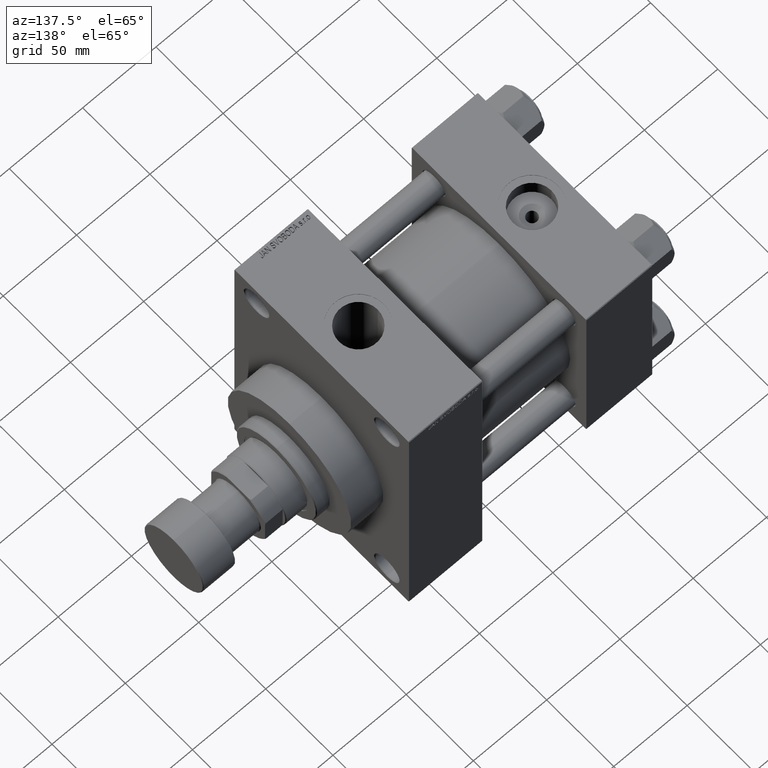
[diagram: clean part render]
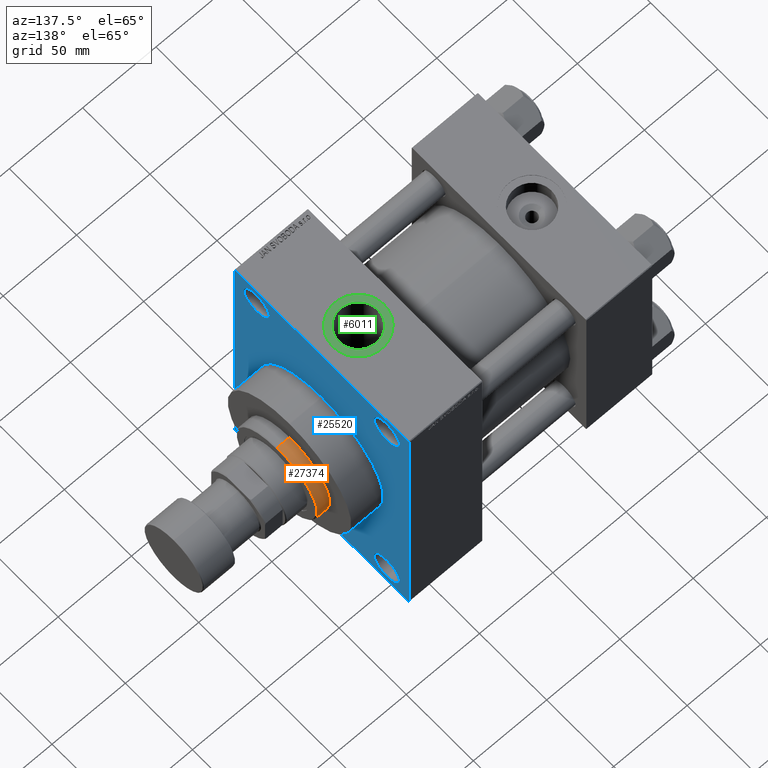
[diagram: same view with three faces highlighted in distinct colors, each labeled with its STEP entity id]
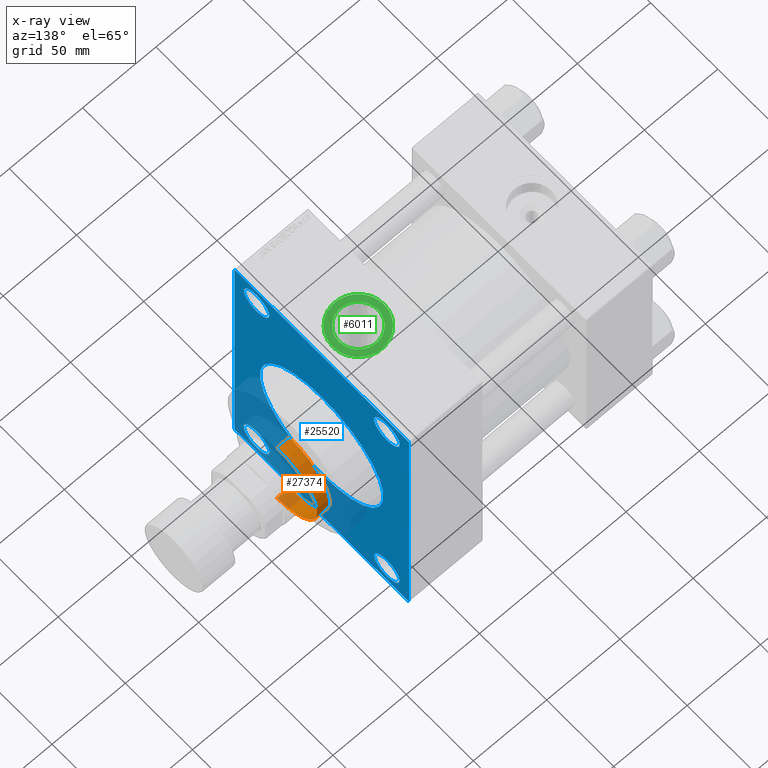
[diagram: x-ray of the same camera — body ghosted, the three highlighted faces saturated]
A machine part, auxiliary view with three faces highlighted in distinct colors.
The next image is the same camera in x-ray (body ghosted, the three faces saturated) — at least one of them is partly hidden behind the body in this view.
Their STEP definitions:

[orange] entity #27374 — the highlighted cylindrical surface (partial cylindrical patch) has radius 30 mm, axis along (-1, -0, 0).
#899 = LINE ( 'NONE', #12081, #9043 ) ;
#2706 = CARTESIAN_POINT ( 'NONE',  ( 0.000000000000000000, 0.000000000000000000, 43.25999999999999801 ) ) ;
#2953 = CARTESIAN_POINT ( 'NONE',  ( 0.000000000000000000, 0.000000000000000000, 52.25999999999999801 ) ) ;
#6353 = EDGE_CURVE ( 'NONE', #18517, #17009, #46920, .T. ) ;
#6823 = DIRECTION ( 'NONE',  ( 0.000000000000000000, 0.000000000000000000, -1.000000000000000000 ) ) ;
#7302 = DIRECTION ( 'NONE',  ( 1.000000000000000000, 0.000000000000000000, 0.000000000000000000 ) ) ;
#7532 = CARTESIAN_POINT ( 'NONE',  ( 30.00000000000000000, 3.673940397442059178E-15, 51.75999999999999091 ) ) ;
#9043 = VECTOR ( 'NONE', #22792, 1000.000000000000000 ) ;
#9234 = CARTESIAN_POINT ( 'NONE',  ( -30.00000000000000000, 0.000000000000000000, 52.25999999999999801 ) ) ;
#9527 = DIRECTION ( 'NONE',  ( 0.000000000000000000, 0.000000000000000000, 1.000000000000000000 ) ) ;
#9748 = ORIENTED_EDGE ( 'NONE', *, *, #13445, .T. ) ;
#10249 = DIRECTION ( 'NONE',  ( -1.000000000000000000, 0.000000000000000000, 0.000000000000000000 ) ) ;
#12081 = CARTESIAN_POINT ( 'NONE',  ( 30.00000000000000000, 3.673940397442059178E-15, 52.25999999999999801 ) ) ;
#12578 = ORIENTED_EDGE ( 'NONE', *, *, #26535, .T. ) ;
#13445 = EDGE_CURVE ( 'NONE', #18517, #42559, #37090, .T. ) ;
#15708 = AXIS2_PLACEMENT_3D ( 'NONE', #2706, #9527, #23885 ) ;
#17009 = VERTEX_POINT ( 'NONE', #24596 ) ;
#18517 = VERTEX_POINT ( 'NONE', #25490 ) ;
#21135 = DIRECTION ( 'NONE',  ( -0.000000000000000000, -0.000000000000000000, -1.000000000000000000 ) ) ;
#22792 = DIRECTION ( 'NONE',  ( -0.000000000000000000, -0.000000000000000000, -1.000000000000000000 ) ) ;
#23885 = DIRECTION ( 'NONE',  ( 1.000000000000000000, 0.000000000000000000, 0.000000000000000000 ) ) ;
#24126 = DIRECTION ( 'NONE',  ( -0.000000000000000000, -0.000000000000000000, -1.000000000000000000 ) ) ;
#24596 = CARTESIAN_POINT ( 'NONE',  ( -30.00000000000000000, 0.000000000000000000, 43.25999999999999801 ) ) ;
#25490 = CARTESIAN_POINT ( 'NONE',  ( -30.00000000000000000, 0.000000000000000000, 51.75999999999999091 ) ) ;
#26535 = EDGE_CURVE ( 'NONE', #40437, #17009, #43642, .T. ) ;
#27374 = ADVANCED_FACE ( 'NONE', ( #42837 ), #47223, .T. ) ;
#32317 = EDGE_LOOP ( 'NONE', ( #9748, #36112, #12578, #40775 ) ) ;
#32568 = CARTESIAN_POINT ( 'NONE',  ( 0.000000000000000000, 0.000000000000000000, 51.75999999999999091 ) ) ;
#33134 = VECTOR ( 'NONE', #21135, 1000.000000000000000 ) ;
#33196 = AXIS2_PLACEMENT_3D ( 'NONE', #32568, #6823, #7302 ) ;
#36112 = ORIENTED_EDGE ( 'NONE', *, *, #47587, .T. ) ;
#37090 = CIRCLE ( 'NONE', #33196, 30.00000000000000000 ) ;
#38254 = AXIS2_PLACEMENT_3D ( 'NONE', #2953, #24126, #10249 ) ;
#40437 = VERTEX_POINT ( 'NONE', #42351 ) ;
#40775 = ORIENTED_EDGE ( 'NONE', *, *, #6353, .F. ) ;
#42351 = CARTESIAN_POINT ( 'NONE',  ( 30.00000000000000000, 3.673940397442059178E-15, 43.25999999999999801 ) ) ;
#42559 = VERTEX_POINT ( 'NONE', #7532 ) ;
#42837 = FACE_OUTER_BOUND ( 'NONE', #32317, .T. ) ;
#43642 = CIRCLE ( 'NONE', #15708, 30.00000000000000000 ) ;
#46920 = LINE ( 'NONE', #9234, #33134 ) ;
#47223 = CYLINDRICAL_SURFACE ( 'NONE', #38254, 30.00000000000000000 ) ;
#47587 = EDGE_CURVE ( 'NONE', #42559, #40437, #899, .T. ) ;

[blue] entity #25520 — the highlighted planar face has unit normal (-1, 0, 0).
#85 = EDGE_CURVE ( 'NONE', #31573, #27287, #22503, .T. ) ;
#941 = CARTESIAN_POINT ( 'NONE',  ( 165.9999999999999716, 65.00000000000000000, 94.50000000000000000 ) ) ;
#1240 = CARTESIAN_POINT ( 'NONE',  ( 165.9999999999999716, 48.50000000000000000, 90.49999999999992895 ) ) ;
#2083 = VECTOR ( 'NONE', #33769, 999.9999999999998863 ) ;
#2445 = EDGE_LOOP ( 'NONE', ( #3041, #5012 ) ) ;
#2491 = DIRECTION ( 'NONE',  ( 0.000000000000000000, 0.000000000000000000, 1.000000000000000000 ) ) ;
#2665 = DIRECTION ( 'NONE',  ( -1.000000000000000000, -0.000000000000000000, -0.000000000000000000 ) ) ;
#2689 = AXIS2_PLACEMENT_3D ( 'NONE', #19522, #34330, #3964 ) ;
#3041 = ORIENTED_EDGE ( 'NONE', *, *, #24106, .T. ) ;
#3172 = CARTESIAN_POINT ( 'NONE',  ( 165.9999999999999716, 48.50000000000000000, 71.50000000000007105 ) ) ;
#3299 = CARTESIAN_POINT ( 'NONE',  ( 165.9999999999999716, -65.00000000000000000, -94.50000000000001421 ) ) ;
#3360 = DIRECTION ( 'NONE',  ( 1.000000000000000000, 0.000000000000000000, 0.000000000000000000 ) ) ;
#3470 = DIRECTION ( 'NONE',  ( -1.000000000000000000, -0.000000000000000000, -0.000000000000000000 ) ) ;
#3964 = DIRECTION ( 'NONE',  ( 0.000000000000000000, 0.000000000000000000, 1.000000000000000000 ) ) ;
#4360 = CARTESIAN_POINT ( 'NONE',  ( 165.9999999999999716, 0.000000000000000000, 0.000000000000000000 ) ) ;
#4439 = ORIENTED_EDGE ( 'NONE', *, *, #13235, .T. ) ;
#4493 = DIRECTION ( 'NONE',  ( -1.000000000000000000, -0.000000000000000000, -0.000000000000000000 ) ) ;
#4591 = FACE_BOUND ( 'NONE', #33556, .T. ) ;
#4727 = CARTESIAN_POINT ( 'NONE',  ( 165.9999999999999716, 48.50000000000000000, -81.00000000000000000 ) ) ;
#4845 = ORIENTED_EDGE ( 'NONE', *, *, #40842, .T. ) ;
#4850 = VECTOR ( 'NONE', #41146, 1000.000000000000000 ) ;
#5012 = ORIENTED_EDGE ( 'NONE', *, *, #34785, .T. ) ;
#5071 = CARTESIAN_POINT ( 'NONE',  ( 165.9999999999999716, 65.00000000000000000, -94.50000000000002842 ) ) ;
#5150 = VECTOR ( 'NONE', #28759, 1000.000000000000114 ) ;
#5277 = CIRCLE ( 'NONE', #9932, 9.499999999999925393 ) ;
#5362 = VERTEX_POINT ( 'NONE', #47735 ) ;
#5580 = AXIS2_PLACEMENT_3D ( 'NONE', #4360, #18958, #37177 ) ;
#5643 = EDGE_CURVE ( 'NONE', #21204, #43215, #19213, .T. ) ;
#6312 = EDGE_CURVE ( 'NONE', #42655, #26913, #8995, .T. ) ;
#7237 = CARTESIAN_POINT ( 'NONE',  ( 165.9999999999999716, -48.50000000000000000, -90.50000000000001421 ) ) ;
#7262 = DIRECTION ( 'NONE',  ( 0.000000000000000000, 0.000000000000000000, -1.000000000000000000 ) ) ;
#7855 = AXIS2_PLACEMENT_3D ( 'NONE', #20972, #35784, #2491 ) ;
#7910 = CARTESIAN_POINT ( 'NONE',  ( 165.9999999999999716, -65.00000000000000000, 94.49999999999998579 ) ) ;
#8278 = CARTESIAN_POINT ( 'NONE',  ( 165.9999999999999716, 65.00000000000000000, 95.00000000000000000 ) ) ;
#8437 = DIRECTION ( 'NONE',  ( -1.000000000000000000, -0.000000000000000000, -0.000000000000000000 ) ) ;
#8995 = LINE ( 'NONE', #8278, #36991 ) ;
#9671 = AXIS2_PLACEMENT_3D ( 'NONE', #22215, #39967, #29736 ) ;
#9932 = AXIS2_PLACEMENT_3D ( 'NONE', #33346, #40400, #14885 ) ;
#10049 = LINE ( 'NONE', #13943, #5150 ) ;
#10331 = EDGE_CURVE ( 'NONE', #18039, #41136, #41062, .T. ) ;
#10776 = LINE ( 'NONE', #29960, #13592 ) ;
#11092 = CARTESIAN_POINT ( 'NONE',  ( 165.9999999999999716, -65.00000000000000000, 94.49999999999998579 ) ) ;
#11200 = CARTESIAN_POINT ( 'NONE',  ( 165.9999999999999716, 5.633375276077824704E-15, -46.00000000000000000 ) ) ;
#11670 = DIRECTION ( 'NONE',  ( 0.000000000000000000, 0.000000000000000000, -1.000000000000000000 ) ) ;
#11759 = ORIENTED_EDGE ( 'NONE', *, *, #23055, .T. ) ;
#11857 = ORIENTED_EDGE ( 'NONE', *, *, #15240, .T. ) ;
#12445 = VERTEX_POINT ( 'NONE', #35910 ) ;
#12551 = CARTESIAN_POINT ( 'NONE',  ( 165.9999999999999716, 48.50000000000000000, -90.50000000000001421 ) ) ;
#13235 = EDGE_CURVE ( 'NONE', #39007, #45979, #5277, .T. ) ;
#13535 = AXIS2_PLACEMENT_3D ( 'NONE', #32880, #3470, #41140 ) ;
#13562 = CIRCLE ( 'NONE', #2689, 9.500000000000008882 ) ;
#13592 = VECTOR ( 'NONE', #25595, 1000.000000000000114 ) ;
#13857 = CARTESIAN_POINT ( 'NONE',  ( 165.9999999999999716, -48.50000000000000000, 81.00000000000000000 ) ) ;
#13943 = CARTESIAN_POINT ( 'NONE',  ( 165.9999999999999716, 64.50000000000000000, 95.00000000000000000 ) ) ;
#14258 = VERTEX_POINT ( 'NONE', #7237 ) ;
#14266 = CARTESIAN_POINT ( 'NONE',  ( 165.9999999999999716, 65.00000000000000000, -95.00000000000002842 ) ) ;
#14885 = DIRECTION ( 'NONE',  ( 0.000000000000000000, 0.000000000000000000, 1.000000000000000000 ) ) ;
#15240 = EDGE_CURVE ( 'NONE', #43079, #5362, #34072, .T. ) ;
#15444 = AXIS2_PLACEMENT_3D ( 'NONE', #16456, #8437, #27137 ) ;
#15611 = AXIS2_PLACEMENT_3D ( 'NONE', #13857, #2665, #42543 ) ;
#15999 = VECTOR ( 'NONE', #11670, 1000.000000000000000 ) ;
#16456 = CARTESIAN_POINT ( 'NONE',  ( 165.9999999999999716, -48.50000000000000000, 81.00000000000000000 ) ) ;
#16514 = CARTESIAN_POINT ( 'NONE',  ( 165.9999999999999716, 65.00000000000000000, 95.00000000000000000 ) ) ;
#16721 = VECTOR ( 'NONE', #47830, 1000.000000000000000 ) ;
#16841 = CARTESIAN_POINT ( 'NONE',  ( 165.9999999999999716, -64.50000000000000000, -95.00000000000002842 ) ) ;
#17285 = AXIS2_PLACEMENT_3D ( 'NONE', #4727, #4493, #46064 ) ;
#17737 = CARTESIAN_POINT ( 'NONE',  ( 165.9999999999999716, -64.50000000000000000, 94.99999999999998579 ) ) ;
#18039 = VERTEX_POINT ( 'NONE', #3299 ) ;
#18958 = DIRECTION ( 'NONE',  ( -1.000000000000000000, 0.000000000000000000, -0.000000000000000000 ) ) ;
#19213 = LINE ( 'NONE', #16514, #15999 ) ;
#19231 = DIRECTION ( 'NONE',  ( 0.000000000000000000, -1.000000000000000000, -1.067522139062650425E-16 ) ) ;
#19490 = CARTESIAN_POINT ( 'NONE',  ( 165.9999999999999716, 0.000000000000000000, 0.000000000000000000 ) ) ;
#19522 = CARTESIAN_POINT ( 'NONE',  ( 165.9999999999999716, -48.50000000000000000, -81.00000000000000000 ) ) ;
#20137 = CARTESIAN_POINT ( 'NONE',  ( 165.9999999999999716, 64.50000000000000000, 95.00000000000000000 ) ) ;
#20972 = CARTESIAN_POINT ( 'NONE',  ( 165.9999999999999716, 48.50000000000000000, -81.00000000000000000 ) ) ;
#21204 = VERTEX_POINT ( 'NONE', #941 ) ;
#21696 = EDGE_CURVE ( 'NONE', #27287, #31573, #21749, .T. ) ;
#21749 = CIRCLE ( 'NONE', #39585, 46.00000000000000000 ) ;
#21786 = CIRCLE ( 'NONE', #15611, 9.499999999999925393 ) ;
#21836 = ORIENTED_EDGE ( 'NONE', *, *, #21696, .F. ) ;
#22215 = CARTESIAN_POINT ( 'NONE',  ( 165.9999999999999716, -48.50000000000000000, -81.00000000000000000 ) ) ;
#22503 = CIRCLE ( 'NONE', #44219, 46.00000000000000000 ) ;
#23055 = EDGE_CURVE ( 'NONE', #5362, #43079, #21786, .T. ) ;
#23077 = FACE_BOUND ( 'NONE', #2445, .T. ) ;
#24106 = EDGE_CURVE ( 'NONE', #37504, #12445, #28786, .T. ) ;
#24671 = VERTEX_POINT ( 'NONE', #40939 ) ;
#25209 = ORIENTED_EDGE ( 'NONE', *, *, #48127, .T. ) ;
#25282 = CARTESIAN_POINT ( 'NONE',  ( 165.9999999999999716, -48.50000000000000000, 71.50000000000007105 ) ) ;
#25351 = EDGE_LOOP ( 'NONE', ( #39828, #45523, #39490, #35973, #33013, #25209, #44862, #32124 ) ) ;
#25376 = ORIENTED_EDGE ( 'NONE', *, *, #31262, .T. ) ;
#25520 = ADVANCED_FACE ( 'NONE', ( #4591, #33281, #23077, #29886, #44972, #30597 ), #37422, .F. ) ;
#25595 = DIRECTION ( 'NONE',  ( -0.000000000000000000, 0.7071067811865474617, 0.7071067811865474617 ) ) ;
#26427 = EDGE_CURVE ( 'NONE', #43726, #18039, #47992, .T. ) ;
#26801 = CARTESIAN_POINT ( 'NONE',  ( 165.9999999999999716, 0.000000000000000000, 46.00000000000000000 ) ) ;
#26913 = VERTEX_POINT ( 'NONE', #17737 ) ;
#27137 = DIRECTION ( 'NONE',  ( 0.000000000000000000, 0.000000000000000000, 1.000000000000000000 ) ) ;
#27287 = VERTEX_POINT ( 'NONE', #26801 ) ;
#27992 = CARTESIAN_POINT ( 'NONE',  ( 165.9999999999999716, 64.50000000000000000, -95.00000000000002842 ) ) ;
#27998 = EDGE_CURVE ( 'NONE', #26913, #43726, #29315, .T. ) ;
#28165 = VECTOR ( 'NONE', #28602, 1000.000000000000114 ) ;
#28262 = CIRCLE ( 'NONE', #13535, 9.499999999999925393 ) ;
#28602 = DIRECTION ( 'NONE',  ( -0.000000000000000000, -0.7071067811865474617, -0.7071067811865474617 ) ) ;
#28759 = DIRECTION ( 'NONE',  ( 0.000000000000000000, -0.7071067811865474617, 0.7071067811865474617 ) ) ;
#28786 = CIRCLE ( 'NONE', #7855, 9.500000000000008882 ) ;
#29315 = LINE ( 'NONE', #11092, #28165 ) ;
#29736 = DIRECTION ( 'NONE',  ( 0.000000000000000000, 0.000000000000000000, 1.000000000000000000 ) ) ;
#29886 = FACE_BOUND ( 'NONE', #39816, .T. ) ;
#29960 = CARTESIAN_POINT ( 'NONE',  ( 165.9999999999999716, 65.00000000000000000, -94.50000000000002842 ) ) ;
#29964 = CARTESIAN_POINT ( 'NONE',  ( 165.9999999999999716, -65.00000000000000000, 94.99999999999998579 ) ) ;
#30597 = FACE_OUTER_BOUND ( 'NONE', #25351, .T. ) ;
#31262 = EDGE_CURVE ( 'NONE', #45979, #39007, #28262, .T. ) ;
#31339 = ORIENTED_EDGE ( 'NONE', *, *, #40231, .T. ) ;
#31573 = VERTEX_POINT ( 'NONE', #11200 ) ;
#32016 = LINE ( 'NONE', #14266, #16721 ) ;
#32124 = ORIENTED_EDGE ( 'NONE', *, *, #27998, .T. ) ;
#32880 = CARTESIAN_POINT ( 'NONE',  ( 165.9999999999999716, 48.50000000000000000, 81.00000000000000000 ) ) ;
#33013 = ORIENTED_EDGE ( 'NONE', *, *, #5643, .F. ) ;
#33281 = FACE_BOUND ( 'NONE', #44497, .T. ) ;
#33346 = CARTESIAN_POINT ( 'NONE',  ( 165.9999999999999716, 48.50000000000000000, 81.00000000000000000 ) ) ;
#33556 = EDGE_LOOP ( 'NONE', ( #11857, #11759 ) ) ;
#33769 = DIRECTION ( 'NONE',  ( 0.000000000000000000, 0.7071067811865376918, -0.7071067811865574537 ) ) ;
#34072 = CIRCLE ( 'NONE', #15444, 9.499999999999925393 ) ;
#34330 = DIRECTION ( 'NONE',  ( -1.000000000000000000, -0.000000000000000000, -0.000000000000000000 ) ) ;
#34474 = CARTESIAN_POINT ( 'NONE',  ( 165.9999999999999716, -64.50000000000000000, -95.00000000000002842 ) ) ;
#34785 = EDGE_CURVE ( 'NONE', #12445, #37504, #46793, .T. ) ;
#35109 = VERTEX_POINT ( 'NONE', #27992 ) ;
#35777 = EDGE_LOOP ( 'NONE', ( #21836, #45354 ) ) ;
#35784 = DIRECTION ( 'NONE',  ( -1.000000000000000000, -0.000000000000000000, -0.000000000000000000 ) ) ;
#35910 = CARTESIAN_POINT ( 'NONE',  ( 165.9999999999999716, 48.50000000000000000, -71.50000000000000000 ) ) ;
#35973 = ORIENTED_EDGE ( 'NONE', *, *, #44975, .T. ) ;
#36656 = CARTESIAN_POINT ( 'NONE',  ( 165.9999999999999716, 0.000000000000000000, 0.000000000000000000 ) ) ;
#36991 = VECTOR ( 'NONE', #19231, 1000.000000000000000 ) ;
#37177 = DIRECTION ( 'NONE',  ( -0.000000000000000000, 0.000000000000000000, 1.000000000000000000 ) ) ;
#37422 = PLANE ( 'NONE',  #5580 ) ;
#37504 = VERTEX_POINT ( 'NONE', #12551 ) ;
#37948 = DIRECTION ( 'NONE',  ( 1.000000000000000000, 0.000000000000000000, 0.000000000000000000 ) ) ;
#39007 = VERTEX_POINT ( 'NONE', #3172 ) ;
#39490 = ORIENTED_EDGE ( 'NONE', *, *, #41751, .F. ) ;
#39585 = AXIS2_PLACEMENT_3D ( 'NONE', #19490, #37948, #47967 ) ;
#39816 = EDGE_LOOP ( 'NONE', ( #4439, #25376 ) ) ;
#39828 = ORIENTED_EDGE ( 'NONE', *, *, #26427, .T. ) ;
#39967 = DIRECTION ( 'NONE',  ( -1.000000000000000000, -0.000000000000000000, -0.000000000000000000 ) ) ;
#40231 = EDGE_CURVE ( 'NONE', #24671, #14258, #13562, .T. ) ;
#40400 = DIRECTION ( 'NONE',  ( -1.000000000000000000, -0.000000000000000000, -0.000000000000000000 ) ) ;
#40842 = EDGE_CURVE ( 'NONE', #14258, #24671, #43813, .T. ) ;
#40939 = CARTESIAN_POINT ( 'NONE',  ( 165.9999999999999716, -48.50000000000000000, -71.50000000000000000 ) ) ;
#41062 = LINE ( 'NONE', #34474, #2083 ) ;
#41136 = VERTEX_POINT ( 'NONE', #16841 ) ;
#41140 = DIRECTION ( 'NONE',  ( 0.000000000000000000, 0.000000000000000000, 1.000000000000000000 ) ) ;
#41146 = DIRECTION ( 'NONE',  ( 0.000000000000000000, 0.000000000000000000, -1.000000000000000000 ) ) ;
#41751 = EDGE_CURVE ( 'NONE', #35109, #41136, #32016, .T. ) ;
#42543 = DIRECTION ( 'NONE',  ( 0.000000000000000000, 0.000000000000000000, 1.000000000000000000 ) ) ;
#42655 = VERTEX_POINT ( 'NONE', #20137 ) ;
#43079 = VERTEX_POINT ( 'NONE', #25282 ) ;
#43215 = VERTEX_POINT ( 'NONE', #5071 ) ;
#43726 = VERTEX_POINT ( 'NONE', #7910 ) ;
#43813 = CIRCLE ( 'NONE', #9671, 9.500000000000008882 ) ;
#44219 = AXIS2_PLACEMENT_3D ( 'NONE', #36656, #3360, #7262 ) ;
#44497 = EDGE_LOOP ( 'NONE', ( #4845, #31339 ) ) ;
#44862 = ORIENTED_EDGE ( 'NONE', *, *, #6312, .T. ) ;
#44972 = FACE_BOUND ( 'NONE', #35777, .T. ) ;
#44975 = EDGE_CURVE ( 'NONE', #35109, #43215, #10776, .T. ) ;
#45354 = ORIENTED_EDGE ( 'NONE', *, *, #85, .F. ) ;
#45523 = ORIENTED_EDGE ( 'NONE', *, *, #10331, .T. ) ;
#45979 = VERTEX_POINT ( 'NONE', #1240 ) ;
#46064 = DIRECTION ( 'NONE',  ( 0.000000000000000000, 0.000000000000000000, 1.000000000000000000 ) ) ;
#46793 = CIRCLE ( 'NONE', #17285, 9.500000000000008882 ) ;
#47735 = CARTESIAN_POINT ( 'NONE',  ( 165.9999999999999716, -48.50000000000000000, 90.49999999999992895 ) ) ;
#47830 = DIRECTION ( 'NONE',  ( 0.000000000000000000, -1.000000000000000000, 0.000000000000000000 ) ) ;
#47967 = DIRECTION ( 'NONE',  ( 0.000000000000000000, 0.000000000000000000, -1.000000000000000000 ) ) ;
#47992 = LINE ( 'NONE', #29964, #4850 ) ;
#48127 = EDGE_CURVE ( 'NONE', #21204, #42655, #10049, .T. ) ;

[green] entity #6011 — the highlighted planar face has unit normal (0, 0, 1).
#3347 = DIRECTION ( 'NONE',  ( 1.000000000000000000, 0.000000000000000000, 0.000000000000000000 ) ) ;
#5212 = CIRCLE ( 'NONE', #6676, 17.50000000000001421 ) ;
#5280 = EDGE_LOOP ( 'NONE', ( #45905, #45197 ) ) ;
#6011 = ADVANCED_FACE ( 'NONE', ( #8569, #46254 ), #16590, .T. ) ;
#6321 = CIRCLE ( 'NONE', #12525, 13.22000000000000952 ) ;
#6676 = AXIS2_PLACEMENT_3D ( 'NONE', #45667, #46150, #27653 ) ;
#7612 = CARTESIAN_POINT ( 'NONE',  ( 127.7799999999999443, -1.014146032109517921E-14, 94.79999999999999716 ) ) ;
#8036 = EDGE_CURVE ( 'NONE', #33803, #38825, #5212, .T. ) ;
#8569 = FACE_BOUND ( 'NONE', #5280, .T. ) ;
#9293 = DIRECTION ( 'NONE',  ( 0.000000000000000000, 0.000000000000000000, 1.000000000000000000 ) ) ;
#9889 = CARTESIAN_POINT ( 'NONE',  ( 123.4999999999999432, -7.998328422587307805E-15, 94.79999999999999716 ) ) ;
#10448 = DIRECTION ( 'NONE',  ( -0.000000000000000000, -0.000000000000000000, -1.000000000000000000 ) ) ;
#11563 = AXIS2_PLACEMENT_3D ( 'NONE', #43467, #36645, #3347 ) ;
#12525 = AXIS2_PLACEMENT_3D ( 'NONE', #21634, #10448, #24321 ) ;
#15101 = EDGE_CURVE ( 'NONE', #38825, #33803, #41828, .T. ) ;
#15921 = CARTESIAN_POINT ( 'NONE',  ( 154.2199999999999704, -8.522477252622377268E-15, 94.79999999999999716 ) ) ;
#16098 = EDGE_LOOP ( 'NONE', ( #36911, #23604 ) ) ;
#16590 = PLANE ( 'NONE',  #33099 ) ;
#18739 = DIRECTION ( 'NONE',  ( -0.000000000000000000, -0.000000000000000000, -1.000000000000000000 ) ) ;
#20845 = EDGE_CURVE ( 'NONE', #33973, #38738, #6321, .T. ) ;
#21634 = CARTESIAN_POINT ( 'NONE',  ( 140.9999999999999716, -1.014146032109517921E-14, 94.79999999999999716 ) ) ;
#23604 = ORIENTED_EDGE ( 'NONE', *, *, #8036, .T. ) ;
#24120 = DIRECTION ( 'NONE',  ( 1.000000000000000000, 0.000000000000000000, -0.000000000000000000 ) ) ;
#24321 = DIRECTION ( 'NONE',  ( 1.000000000000000000, 0.000000000000000000, 0.000000000000000000 ) ) ;
#27653 = DIRECTION ( 'NONE',  ( 1.000000000000000000, 0.000000000000000000, 0.000000000000000000 ) ) ;
#29710 = CARTESIAN_POINT ( 'NONE',  ( 158.4999999999999716, -1.014146032109517921E-14, 94.79999999999999716 ) ) ;
#31221 = CIRCLE ( 'NONE', #38223, 13.22000000000000952 ) ;
#33099 = AXIS2_PLACEMENT_3D ( 'NONE', #42592, #9293, #24120 ) ;
#33803 = VERTEX_POINT ( 'NONE', #9889 ) ;
#33973 = VERTEX_POINT ( 'NONE', #15921 ) ;
#35314 = EDGE_CURVE ( 'NONE', #38738, #33973, #31221, .T. ) ;
#36645 = DIRECTION ( 'NONE',  ( 0.000000000000000000, 0.000000000000000000, 1.000000000000000000 ) ) ;
#36911 = ORIENTED_EDGE ( 'NONE', *, *, #15101, .T. ) ;
#38223 = AXIS2_PLACEMENT_3D ( 'NONE', #42035, #18739, #45232 ) ;
#38738 = VERTEX_POINT ( 'NONE', #7612 ) ;
#38825 = VERTEX_POINT ( 'NONE', #29710 ) ;
#41828 = CIRCLE ( 'NONE', #11563, 17.50000000000001421 ) ;
#42035 = CARTESIAN_POINT ( 'NONE',  ( 140.9999999999999716, -1.014146032109517921E-14, 94.79999999999999716 ) ) ;
#42592 = CARTESIAN_POINT ( 'NONE',  ( 140.9999999999999716, -1.014146032109517921E-14, 94.79999999999999716 ) ) ;
#43467 = CARTESIAN_POINT ( 'NONE',  ( 140.9999999999999716, -1.014146032109517921E-14, 94.79999999999999716 ) ) ;
#45197 = ORIENTED_EDGE ( 'NONE', *, *, #20845, .T. ) ;
#45232 = DIRECTION ( 'NONE',  ( 1.000000000000000000, 0.000000000000000000, 0.000000000000000000 ) ) ;
#45667 = CARTESIAN_POINT ( 'NONE',  ( 140.9999999999999716, -1.014146032109517921E-14, 94.79999999999999716 ) ) ;
#45905 = ORIENTED_EDGE ( 'NONE', *, *, #35314, .T. ) ;
#46150 = DIRECTION ( 'NONE',  ( 0.000000000000000000, 0.000000000000000000, 1.000000000000000000 ) ) ;
#46254 = FACE_OUTER_BOUND ( 'NONE', #16098, .T. ) ;